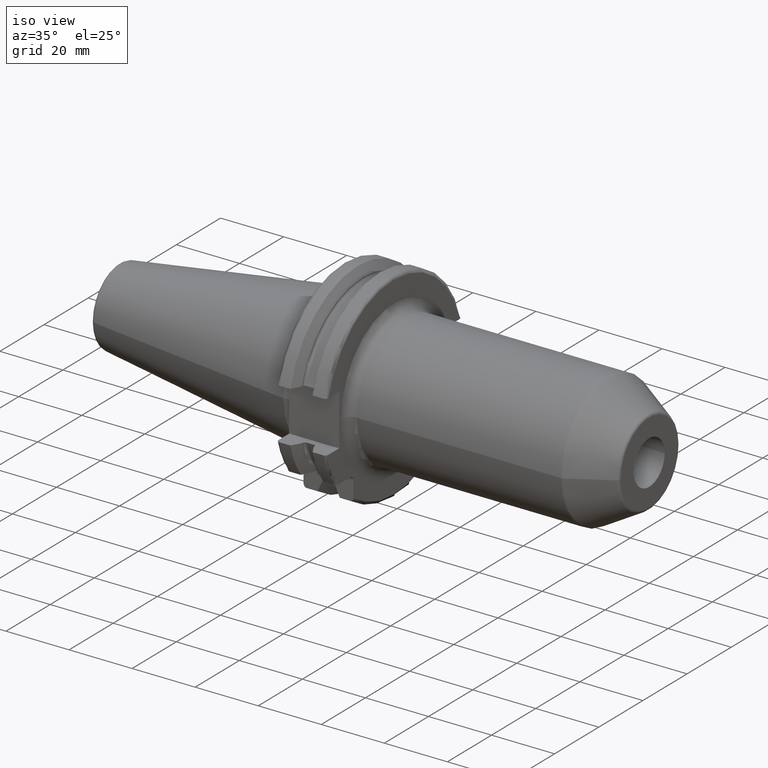
[diagram: clean part render]
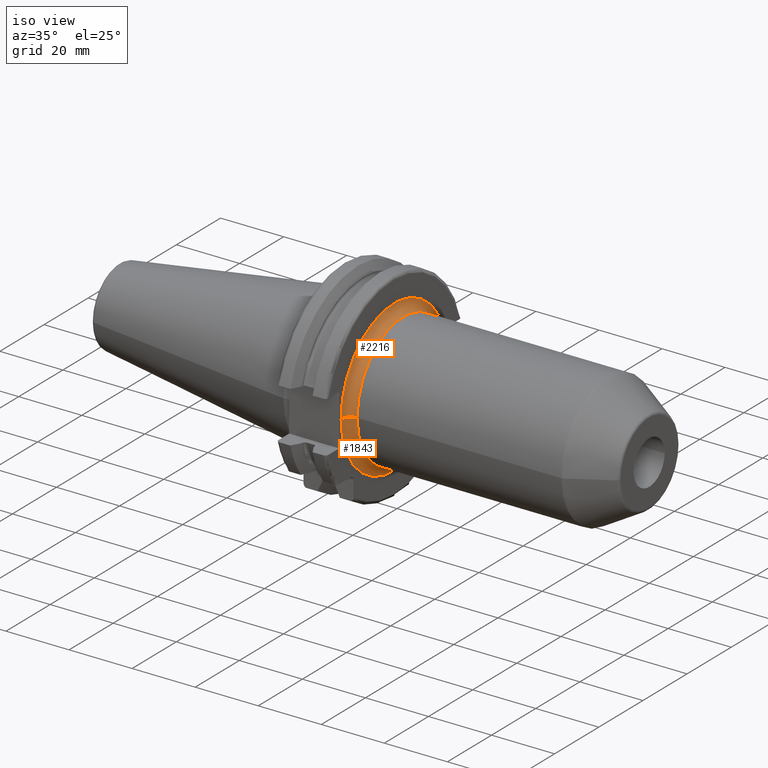
[diagram: same view with one multi-face feature highlighted, each face labeled with its STEP entity id]
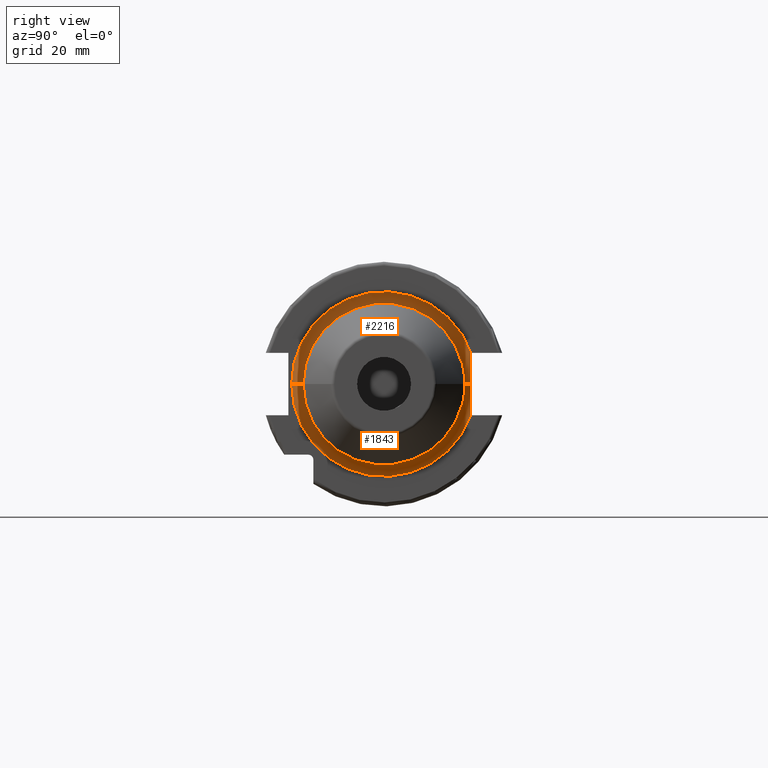
[diagram: same view with one multi-face feature highlighted, each face labeled with its STEP entity id]
A machine part, iso view. The highlighted faces form ONE feature: a constant-radius fillet chain: 2 tangent blend faces with common blend radius 3 mm. The faces share edges in the B-rep.
A second angle (right view) of the same feature is appended — it is thin or edge-on in the first view.
Their STEP definitions:
[1] entity #2216 (Torus):
#144=CARTESIAN_POINT('',(2.205E1,-2.4E1,2.769451334927E-13));
#145=DIRECTION('',(0.E0,-1.153851320046E-14,-1.E0));
#146=DIRECTION('',(-1.E0,2.013204417987E-14,0.E0));
#147=AXIS2_PLACEMENT_3D('',#144,#145,#146);
#182=CARTESIAN_POINT('',(1.905E1,0.E0,0.E0));
#183=DIRECTION('',(1.E0,0.E0,0.E0));
#184=DIRECTION('',(0.E0,9.413255117586E-1,3.375000457962E-1));
#185=AXIS2_PLACEMENT_3D('',#182,#183,#184);
#503=CARTESIAN_POINT('',(1.905025814952E1,2.255E1,8.1E0));
#504=CARTESIAN_POINT('',(1.905020077623E1,2.255464669015E1,8.1E0));
#505=CARTESIAN_POINT('',(1.905010516129E1,2.256394074289E1,8.099996145498E0));
#506=CARTESIAN_POINT('',(1.905001911750E1,2.257787297328E1,8.100013490756E0));
#507=CARTESIAN_POINT('',(1.905E1,2.258717695931E1,8.099971091238E0));
#508=CARTESIAN_POINT('',(1.905E1,2.259182188787E1,8.099971091238E0));
#510=CARTESIAN_POINT('',(1.905025814952E1,2.255E1,8.1E0));
#511=CARTESIAN_POINT('',(1.905444152205E1,2.255E1,7.156760546291E0));
#512=CARTESIAN_POINT('',(1.915989888059E1,2.255E1,5.299331638885E0));
#513=CARTESIAN_POINT('',(1.937186058562E1,2.255E1,2.502694043753E0));
#514=CARTESIAN_POINT('',(1.942366038154E1,2.255E1,8.159355539240E-1));
#515=CARTESIAN_POINT('',(1.942369077423E1,2.255E1,1.524226964009E-3));
#517=CARTESIAN_POINT('',(2.205E1,2.399999994517E1,1.622237119835E-3));
#518=DIRECTION('',(0.E0,-6.759321332647E-5,9.999999977156E-1));
#519=DIRECTION('',(-8.754364085916E-1,-4.833333150580E-1,-3.267005194713E-5));
#520=AXIS2_PLACEMENT_3D('',#517,#518,#519);
#548=CARTESIAN_POINT('',(2.205E1,0.E0,0.E0));
#549=DIRECTION('',(1.E0,0.E0,0.E0));
#550=DIRECTION('',(0.E0,1.E0,0.E0));
#551=AXIS2_PLACEMENT_3D('',#548,#549,#550);
#1577=CARTESIAN_POINT('',(1.905E1,-2.4E1,0.E0));
#1579=VERTEX_POINT('',#1577);
#1581=CARTESIAN_POINT('',(2.205E1,-2.1E1,0.E0));
#1582=CARTESIAN_POINT('',(2.205E1,2.1E1,0.E0));
#1583=VERTEX_POINT('',#1581);
#1584=VERTEX_POINT('',#1582);
#1585=CARTESIAN_POINT('',(1.905E1,2.259181228221E1,8.100001099108E0));
#1586=VERTEX_POINT('',#1585);
#1616=VERTEX_POINT('',#503);
#1618=VERTEX_POINT('',#515);
#2202=CARTESIAN_POINT('',(2.205E1,0.E0,0.E0));
#2203=DIRECTION('',(1.E0,0.E0,0.E0));
#2204=DIRECTION('',(0.E0,1.485959642860E-3,-9.999988959614E-1));
#2205=AXIS2_PLACEMENT_3D('',#2202,#2203,#2204);
#2206=TOROIDAL_SURFACE('',#2205,2.4E1,3.E0);
#2207=ORIENTED_EDGE('',*,*,#1871,.F.);
#2208=ORIENTED_EDGE('',*,*,#2173,.F.);
#2209=ORIENTED_EDGE('',*,*,#1775,.T.);
#2210=ORIENTED_EDGE('',*,*,#1837,.T.);
#2212=ORIENTED_EDGE('',*,*,#2211,.T.);
#2213=ORIENTED_EDGE('',*,*,#1833,.F.);
#2214=EDGE_LOOP('',(#2207,#2208,#2209,#2210,#2212,#2213));
#2215=FACE_OUTER_BOUND('',#2214,.F.);
#2216=ADVANCED_FACE('',(#2215),#2206,.F.);
#148=CIRCLE('',#147,3.E0);
#186=CIRCLE('',#185,2.4E1);
#509=B_SPLINE_CURVE_WITH_KNOTS('',3,(#503,#504,#505,#506,#507,#508),
.UNSPECIFIED.,.F.,.F.,(4,1,1,4),(0.E0,3.333333333333E-1,6.666666666667E-1,1.E0),
.UNSPECIFIED.);
#516=B_SPLINE_CURVE_WITH_KNOTS('',3,(#510,#511,#512,#513,#514,#515),
.UNSPECIFIED.,.F.,.F.,(4,1,1,4),(0.E0,3.333333333333E-1,6.666666666667E-1,1.E0),
.UNSPECIFIED.);
#521=CIRCLE('',#520,3.E0);
#552=CIRCLE('',#551,2.1E1);
#1775=EDGE_CURVE('',#1616,#1618,#516,.T.);
#1833=EDGE_CURVE('',#1579,#1583,#148,.T.);
#1837=EDGE_CURVE('',#1618,#1584,#521,.T.);
#1871=EDGE_CURVE('',#1586,#1579,#186,.T.);
#2173=EDGE_CURVE('',#1616,#1586,#509,.T.);
#2211=EDGE_CURVE('',#1584,#1583,#552,.T.);
[2] entity #1843 (Torus):
#122=CARTESIAN_POINT('',(1.905025814952E1,2.255E1,-8.1E0));
#123=CARTESIAN_POINT('',(1.905444329210E1,2.255E1,-7.156361448841E0));
#124=CARTESIAN_POINT('',(1.915998444125E1,2.255E1,-5.298177395066E0));
#125=CARTESIAN_POINT('',(1.937200610775E1,2.255E1,-2.500588090443E0));
#126=CARTESIAN_POINT('',(1.942372117836E1,2.255E1,-8.131939508920E-1));
#127=CARTESIAN_POINT('',(1.942369077423E1,2.255E1,1.524226964009E-3));
#133=CARTESIAN_POINT('',(1.905025814952E1,2.255E1,-8.1E0));
#134=CARTESIAN_POINT('',(1.905020077624E1,2.255464668886E1,-8.1E0));
#135=CARTESIAN_POINT('',(1.905010516133E1,2.256393975094E1,-8.099999248235E0));
#136=CARTESIAN_POINT('',(1.905001911755E1,2.257787642385E1,-8.100002631178E0));
#137=CARTESIAN_POINT('',(1.905E1,2.258716953837E1,-8.099994361761E0));
#138=CARTESIAN_POINT('',(1.905E1,2.259181447144E1,-8.099994361761E0));
#144=CARTESIAN_POINT('',(2.205E1,-2.4E1,2.769451334927E-13));
#145=DIRECTION('',(0.E0,-1.153851320046E-14,-1.E0));
#146=DIRECTION('',(-1.E0,2.013204417987E-14,0.E0));
#147=AXIS2_PLACEMENT_3D('',#144,#145,#146);
#149=CARTESIAN_POINT('',(1.905E1,0.E0,0.E0));
#150=DIRECTION('',(1.E0,0.E0,0.E0));
#151=DIRECTION('',(0.E0,-1.E0,0.E0));
#152=AXIS2_PLACEMENT_3D('',#149,#150,#151);
#515=CARTESIAN_POINT('',(1.942369077423E1,2.255E1,1.524226964009E-3));
#517=CARTESIAN_POINT('',(2.205E1,2.399999994517E1,1.622237119835E-3));
#518=DIRECTION('',(0.E0,-6.759321332647E-5,9.999999977156E-1));
#519=DIRECTION('',(-8.754364085916E-1,-4.833333150580E-1,-3.267005194713E-5));
#520=AXIS2_PLACEMENT_3D('',#517,#518,#519);
#586=CARTESIAN_POINT('',(2.205E1,0.E0,0.E0));
#587=DIRECTION('',(1.E0,0.E0,0.E0));
#588=DIRECTION('',(0.E0,-1.E0,0.E0));
#589=AXIS2_PLACEMENT_3D('',#586,#587,#588);
#1577=CARTESIAN_POINT('',(1.905E1,-2.4E1,0.E0));
#1578=CARTESIAN_POINT('',(1.905E1,2.259181259893E1,-8.100000215732E0));
#1579=VERTEX_POINT('',#1577);
#1580=VERTEX_POINT('',#1578);
#1581=CARTESIAN_POINT('',(2.205E1,-2.1E1,0.E0));
#1582=CARTESIAN_POINT('',(2.205E1,2.1E1,0.E0));
#1583=VERTEX_POINT('',#1581);
#1584=VERTEX_POINT('',#1582);
#1617=VERTEX_POINT('',#133);
#1618=VERTEX_POINT('',#515);
#1826=CARTESIAN_POINT('',(2.205E1,0.E0,0.E0));
#1827=DIRECTION('',(1.E0,0.E0,0.E0));
#1828=DIRECTION('',(0.E0,-9.999731921857E-1,7.322220282676E-3));
#1829=AXIS2_PLACEMENT_3D('',#1826,#1827,#1828);
#1830=TOROIDAL_SURFACE('',#1829,2.4E1,3.E0);
#1832=ORIENTED_EDGE('',*,*,#1831,.F.);
#1834=ORIENTED_EDGE('',*,*,#1833,.T.);
#1836=ORIENTED_EDGE('',*,*,#1835,.T.);
#1838=ORIENTED_EDGE('',*,*,#1837,.F.);
#1839=ORIENTED_EDGE('',*,*,#1773,.F.);
#1840=ORIENTED_EDGE('',*,*,#1794,.T.);
#1841=EDGE_LOOP('',(#1832,#1834,#1836,#1838,#1839,#1840));
#1842=FACE_OUTER_BOUND('',#1841,.F.);
#1843=ADVANCED_FACE('',(#1842),#1830,.F.);
#128=B_SPLINE_CURVE_WITH_KNOTS('',3,(#122,#123,#124,#125,#126,#127),
.UNSPECIFIED.,.F.,.F.,(4,1,1,4),(0.E0,3.333333333333E-1,6.666666666667E-1,1.E0),
.UNSPECIFIED.);
#139=B_SPLINE_CURVE_WITH_KNOTS('',3,(#133,#134,#135,#136,#137,#138),
.UNSPECIFIED.,.F.,.F.,(4,1,1,4),(0.E0,3.333333333333E-1,6.666666666667E-1,1.E0),
.UNSPECIFIED.);
#148=CIRCLE('',#147,3.E0);
#153=CIRCLE('',#152,2.4E1);
#521=CIRCLE('',#520,3.E0);
#590=CIRCLE('',#589,2.1E1);
#1773=EDGE_CURVE('',#1617,#1618,#128,.T.);
#1794=EDGE_CURVE('',#1617,#1580,#139,.T.);
#1831=EDGE_CURVE('',#1579,#1580,#153,.T.);
#1833=EDGE_CURVE('',#1579,#1583,#148,.T.);
#1835=EDGE_CURVE('',#1583,#1584,#590,.T.);
#1837=EDGE_CURVE('',#1618,#1584,#521,.T.);